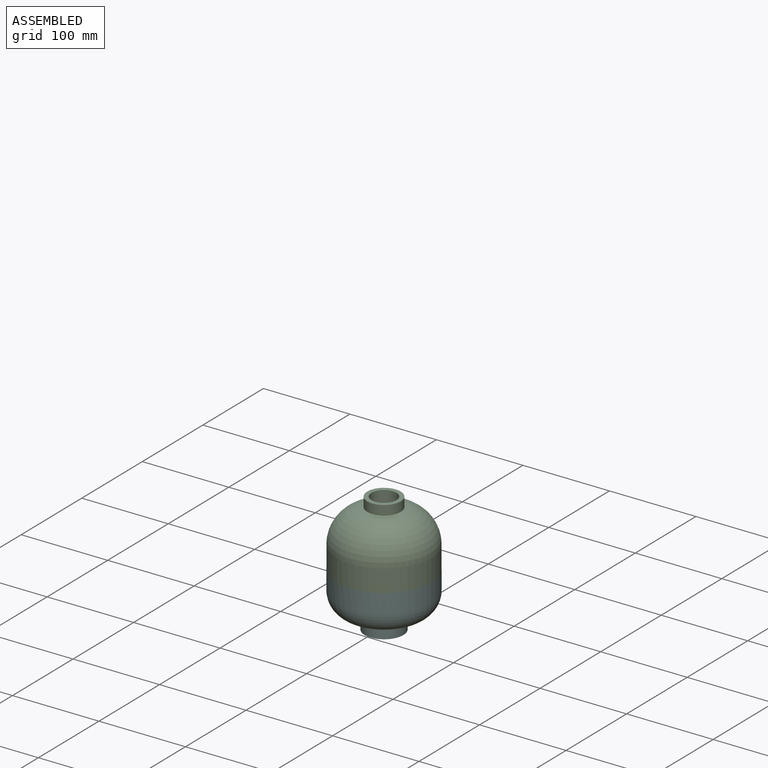
[diagram: assembled view]
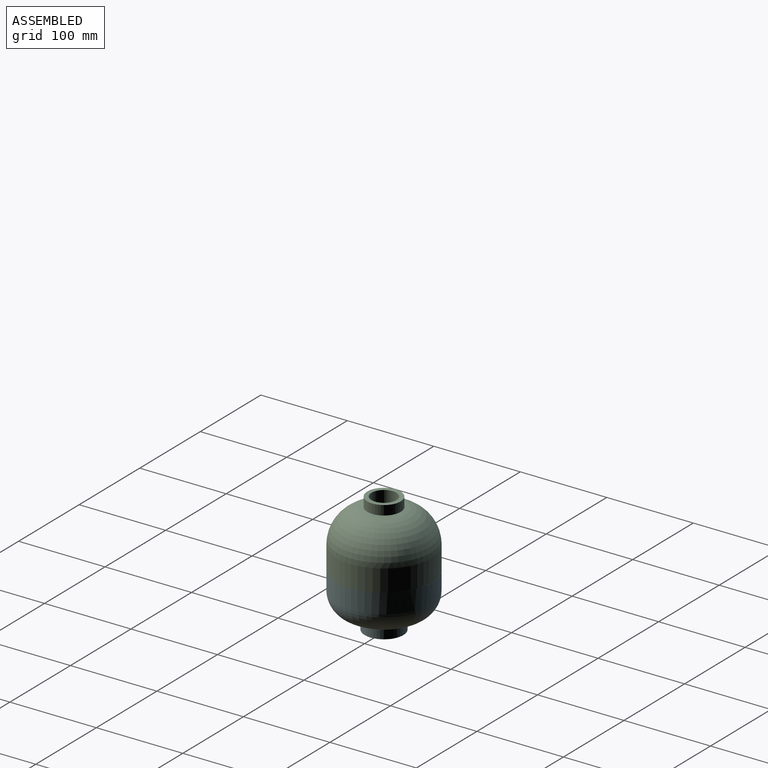
[diagram: assembled view, second angle]
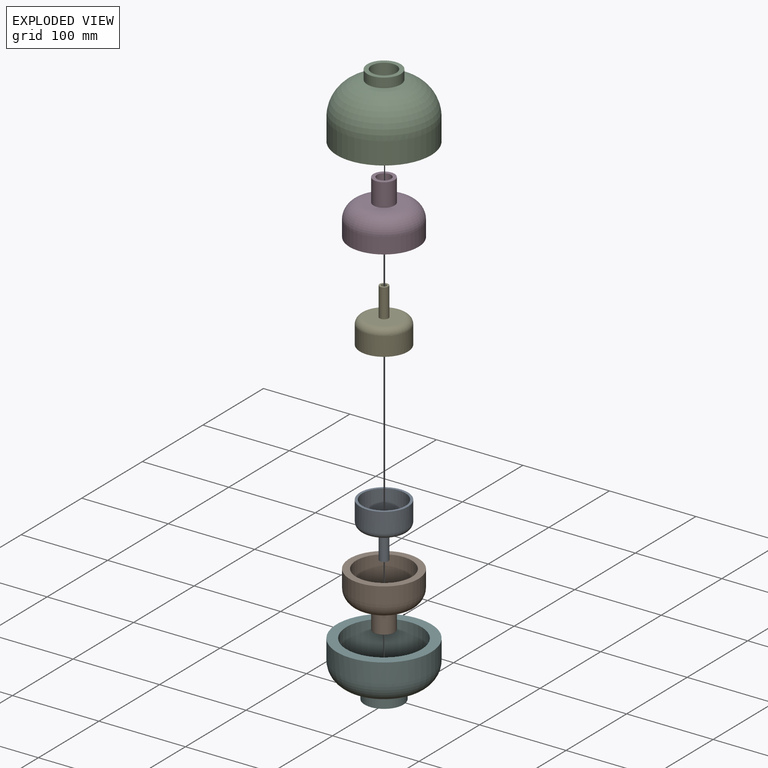
[diagram: exploded view]
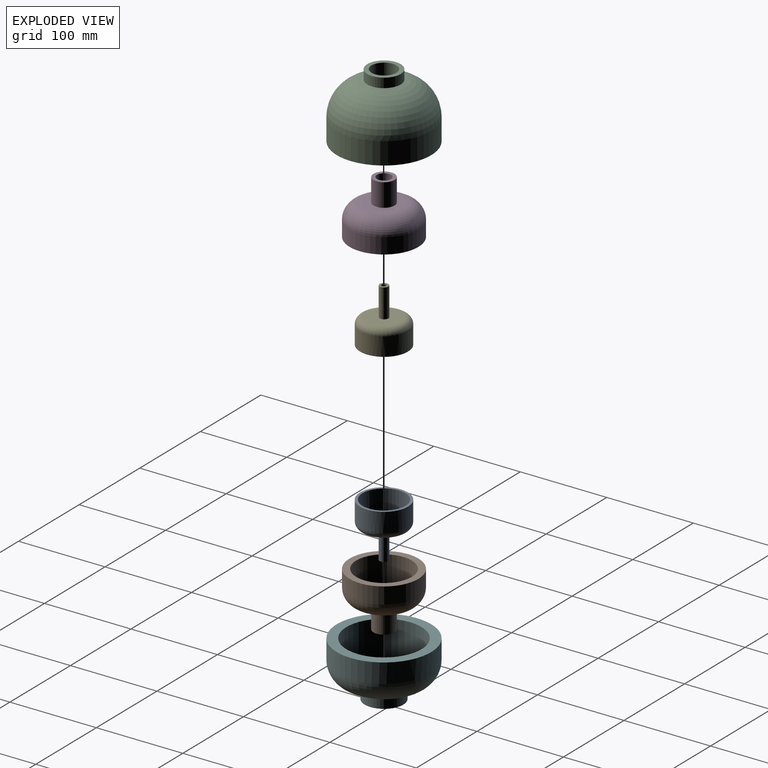
[diagram: exploded view, second angle]
ASSEMBLY  parts=6 mates=5
PART A: 9 faces, bbox 60.1x60.1x63 mm
  f0: plane 55.49x55.49mm, normal (0,0,1), area 477.9mm2, adj f1,f7
  f1: cylinder r=27.74mm len=55.49mm, axis (0,0,-1), area 3891.3mm2, adj f0,f8
  f2: plane 40.77x40.77mm, normal (0,0,-1), area 1224mm2, adj f3,f8
  f3: cylinder r=5.09mm len=33.31mm, axis (0,0,-1), area 1065.8mm2, adj f2,f4
  f4: plane 10.19x10.19mm, normal (0,0,-1), area 55.7mm2, adj f3,f5
  f5: cylinder r=2.87mm len=35.09mm, axis (0,0,-1), area 632.1mm2, adj f4,f6
  f6: plane 49.7x49.7mm, normal (0,0,1), area 1914.4mm2, adj f5,f7
  f7: cylinder r=24.85mm len=49.7mm, axis (0,0,-1), area 4356.3mm2, adj f0,f6
  f8: torus R=20.38mm, axis (0,0,1), area 1820.7mm2, adj f1,f2
PART B: 9 faces, bbox 86.2x86.2x63.4 mm
  f0: plane 79.63x79.63mm, normal (0,0,1), area 1732.2mm2, adj f1,f7
  f1: cylinder r=39.81mm len=79.63mm, axis (0,0,-1), area 4744.2mm2, adj f0,f8
  f2: plane 44.06x44.06mm, normal (0,0,-1), area 1059.8mm2, adj f3,f8
  f3: cylinder r=12.17mm len=26.65mm, axis (0,0,-1), area 2037.3mm2, adj f2,f4
  f4: plane 24.34x24.34mm, normal (0,0,-1), area 255.4mm2, adj f3,f5
  f5: cylinder r=8.17mm len=30.98mm, axis (0,0,-1), area 1590.3mm2, adj f4,f6
  f6: plane 64.31x64.31mm, normal (0,0,1), area 3038.2mm2, adj f5,f7
  f7: cylinder r=32.15mm len=64.31mm, axis (0,0,-1), area 6549.1mm2, adj f0,f6
  f8: torus R=22.03mm, axis (0,0,1), area 5853.8mm2, adj f1,f2
PART C: 8 faces, bbox 109.2x109.2x75.4 mm
  f0: plane 86.96x86.96mm, normal (0,0,-1), area 5283.5mm2, adj f1,f6
  f1: cylinder r=14.45mm len=28.9mm, axis (0,0,1), area 2139.4mm2, adj f0,f2
  f2: plane 38.7x38.7mm, normal (0,0,1), area 520.5mm2, adj f1,f3
  f3: cylinder r=19.35mm len=38.7mm, axis (0,0,1), area 1329.4mm2, adj f2,f7
  f4: cylinder r=54.6mm len=109.21mm, axis (0,0,1), area 8722.6mm2, adj f5,f7
  f5: plane 109.21x109.21mm, normal (0,0,-1), area 3427.2mm2, adj f4,f6
  f6: cylinder r=43.48mm len=86.96mm, axis (0,0,1), area 14161.3mm2, adj f0,f5
  f7: torus R=15.36mm, axis (0,0,1), area 15189.7mm2, adj f3,f4
PART D: 9 faces, bbox 86.2x86.2x62.5 mm
  f0: plane 24.34x24.34mm, normal (0,0,1), area 255.4mm2, adj f1,f7
  f1: cylinder r=12.17mm len=26.65mm, axis (0,0,-1), area 2037.3mm2, adj f0,f2
  f2: plane 44.06x44.06mm, normal (0,0,1), area 1059.8mm2, adj f1,f8
  f3: cylinder r=39.81mm len=79.63mm, axis (0,0,-1), area 4531.9mm2, adj f4,f8
  f4: plane 79.63x79.63mm, normal (0,0,-1), area 1732.2mm2, adj f3,f5
  f5: cylinder r=32.15mm len=64.31mm, axis (0,0,-1), area 6377.7mm2, adj f4,f6
  f6: plane 64.31x64.31mm, normal (0,0,-1), area 3038.2mm2, adj f5,f7
  f7: cylinder r=8.17mm len=30.98mm, axis (0,0,-1), area 1590.3mm2, adj f0,f6
  f8: torus R=22.03mm, axis (0,0,1), area 5853.8mm2, adj f2,f3
PART E: 9 faces, bbox 60.1x60.1x62 mm
  f0: plane 10.19x10.19mm, normal (0,0,1), area 55.7mm2, adj f1,f7
  f1: cylinder r=5.09mm len=33.31mm, axis (0,0,-1), area 1065.8mm2, adj f0,f2
  f2: plane 40.77x40.77mm, normal (0,0,1), area 1224mm2, adj f1,f8
  f3: cylinder r=27.74mm len=55.49mm, axis (0,0,-1), area 3712.6mm2, adj f4,f8
  f4: plane 55.49x55.49mm, normal (0,0,-1), area 477.9mm2, adj f3,f5
  f5: cylinder r=24.85mm len=49.7mm, axis (0,0,-1), area 4196.2mm2, adj f4,f6
  f6: plane 49.7x49.7mm, normal (0,0,-1), area 1914.4mm2, adj f5,f7
  f7: cylinder r=2.87mm len=35.09mm, axis (0,0,-1), area 632.1mm2, adj f0,f6
  f8: torus R=20.38mm, axis (0,0,1), area 1820.7mm2, adj f2,f3
PART F: 9 faces, bbox 118.2x118.2x63.5 mm
  f0: cylinder r=54.6mm len=109.21mm, axis (0,0,1), area 7671.5mm2, adj f7,f8
  f1: plane 58.92x58.92mm, normal (0,0,-1), area 1155.1mm2, adj f2,f8
  f2: cylinder r=22.37mm len=44.73mm, axis (0,0,1), area 2251.9mm2, adj f1,f3
  f3: plane 44.73x44.73mm, normal (0,0,-1), area 915.8mm2, adj f2,f4
  f4: cylinder r=14.45mm len=28.9mm, axis (0,0,1), area 2122.2mm2, adj f3,f5
  f5: plane 86.96x86.96mm, normal (0,0,1), area 5283.5mm2, adj f4,f6
  f6: cylinder r=43.48mm len=86.96mm, axis (0,0,1), area 10968.9mm2, adj f5,f7
  f7: plane 109.21x109.21mm, normal (0,0,1), area 3427.2mm2, adj f0,f6
  f8: torus R=29.46mm, axis (0,0,-1), area 11282.1mm2, adj f0,f1
PLACE A t=(182.29,90.11,-9.4)mm
PLACE B rot(axis=(0,0,1),90deg) t=(196.47,68.47,-8.95)mm
PLACE C t=(196.47,90.11,-10.29)mm
PLACE D t=(174.83,90.11,-9.8)mm
PLACE E t=(182.29,90.11,-10.43)mm
PLACE F t=(196.47,90.11,-9.15)mm
MATE slider B.f1 <-> F.f0  axis (0,0,-1) through (196.47,90.11,-72.68)mm
MATE fastened E.f1 <-> A.f1  axis (0,0,-1) through (196.47,90.11,-9.68)mm
MATE fastened C.f1 <-> F.f0  axis (0,0,-1) through (196.47,90.11,-9.15)mm
MATE slider A.f1 <-> B.f1  axis (0,0,-1) through (196.47,90.11,-72.68)mm
MATE fastened D.f1 <-> B.f1  axis (0,0,-1) through (196.47,90.11,-9.28)mm
